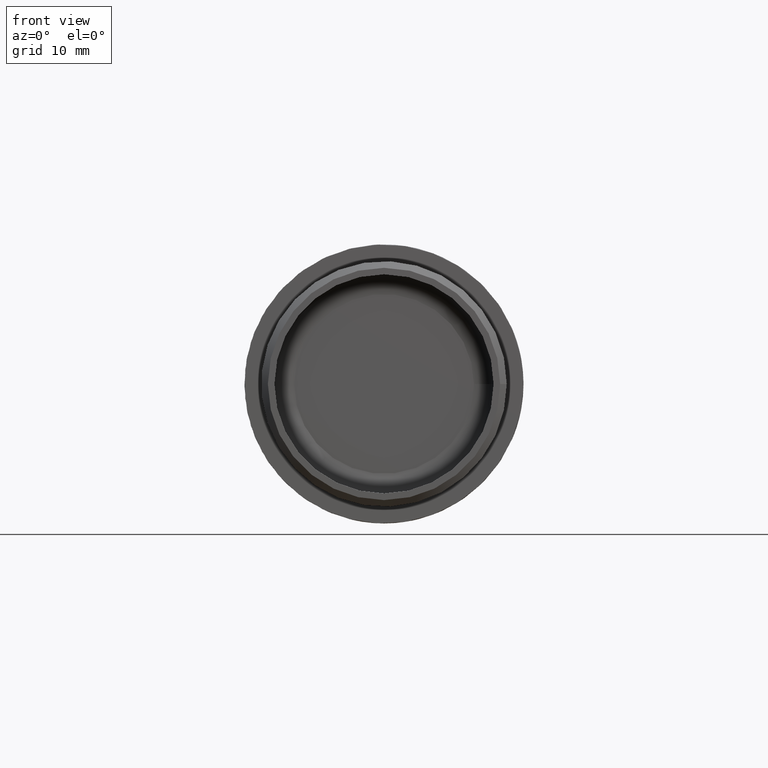
[diagram: clean part render]
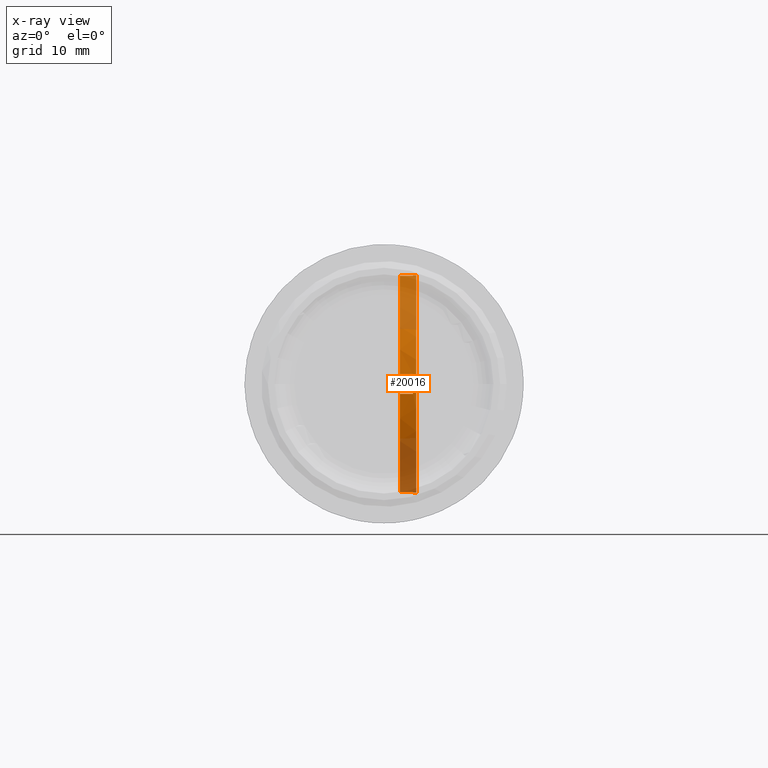
[diagram: x-ray — body ghosted, one internal face saturated and labeled with its STEP entity id]
A machine part, front view, then the same camera in x-ray: the body is ghosted and one INTERNAL B-rep face — a face not visible from any outside direction — is saturated and labeled: STEP entity #20016.
In plain terms, the highlighted cylindrical surface (bore or boss wall) has radius 16.5 mm, axis along (1, -0, -0).
Its self-contained STEP definition (entity closure, byte-faithful):
#41 = ORIENTED_EDGE ( 'NONE', *, *, #10855, .F. ) ;
#232 = CARTESIAN_POINT ( 'NONE',  ( 2.399999999999997700, 26.79999999999999700, 9.565114661027472100E-015 ) ) ;
#252 = CIRCLE ( 'NONE', #1504, 16.50000000000000400 ) ;
#281 = DIRECTION ( 'NONE',  ( -1.000000000000000000, -2.465190328815661900E-032, -2.380153423516082800E-016 ) ) ;
#315 = LINE ( 'NONE', #555, #7012 ) ;
#327 = DIRECTION ( 'NONE',  ( 2.628368902995161500E-016, 0.0000000000000000000, -1.000000000000000000 ) ) ;
#370 = DIRECTION ( 'NONE',  ( 2.365532012695645700E-016, 0.0000000000000000000, -1.000000000000000000 ) ) ;
#555 = CARTESIAN_POINT ( 'NONE',  ( 1.400000000000001900, 28.29999999999999700, -16.43167672515497600 ) ) ;
#559 = CARTESIAN_POINT ( 'NONE',  ( 2.399999999999997700, 43.23167672515499000, 1.500000000000001100 ) ) ;
#581 = AXIS2_PLACEMENT_3D ( 'NONE', #8788, #15151, #5685 ) ;
#668 = VERTEX_POINT ( 'NONE', #8706 ) ;
#849 = VECTOR ( 'NONE', #18010, 1000.000000000000000 ) ;
#1012 = EDGE_LOOP ( 'NONE', ( #2049, #8327 ) ) ;
#1053 = ORIENTED_EDGE ( 'NONE', *, *, #3176, .F. ) ;
#1129 = DIRECTION ( 'NONE',  ( 1.000000000000000000, -3.726309866894354800E-032, 2.448801383671572500E-016 ) ) ;
#1384 = VERTEX_POINT ( 'NONE', #559 ) ;
#1504 = AXIS2_PLACEMENT_3D ( 'NONE', #5751, #8920, #13813 ) ;
#1526 = VERTEX_POINT ( 'NONE', #8850 ) ;
#1538 = EDGE_CURVE ( 'NONE', #17019, #17173, #19507, .T. ) ;
#1647 = DIRECTION ( 'NONE',  ( 1.000000000000000000, -3.726309866894354800E-032, 2.448801383671572500E-016 ) ) ;
#1821 = EDGE_CURVE ( 'NONE', #20573, #16250, #5860, .T. ) ;
#1868 = CARTESIAN_POINT ( 'NONE',  ( 4.399999999999997700, 10.36832327484501100, -1.499999999999998400 ) ) ;
#1918 = DIRECTION ( 'NONE',  ( -1.000000000000000000, -2.465190328815661900E-032, -2.380153423516082800E-016 ) ) ;
#2012 = CIRCLE ( 'NONE', #16881, 16.50000000000000400 ) ;
#2049 = ORIENTED_EDGE ( 'NONE', *, *, #9328, .T. ) ;
#2067 = DIRECTION ( 'NONE',  ( 1.000000000000000000, -3.726309866894354800E-032, 2.448801383671572500E-016 ) ) ;
#2414 = DIRECTION ( 'NONE',  ( 1.000000000000000000, -3.726309866894354800E-032, 2.448801383671572500E-016 ) ) ;
#2564 = CARTESIAN_POINT ( 'NONE',  ( 4.399999999999997700, 26.79999999999999700, 1.005487493776178700E-014 ) ) ;
#3070 = CARTESIAN_POINT ( 'NONE',  ( 4.399999999999997700, 26.79999999999999700, 1.005487493776178700E-014 ) ) ;
#3176 = EDGE_CURVE ( 'NONE', #668, #10150, #8525, .T. ) ;
#3316 = CIRCLE ( 'NONE', #6639, 16.50000000000000400 ) ;
#3320 = DIRECTION ( 'NONE',  ( 2.628368902995161500E-016, 0.0000000000000000000, -1.000000000000000000 ) ) ;
#3460 = AXIS2_PLACEMENT_3D ( 'NONE', #2564, #4099, #15157 ) ;
#3466 = CARTESIAN_POINT ( 'NONE',  ( 2.399999999999997700, 26.79999999999999700, 9.565114661027472100E-015 ) ) ;
#3582 = ORIENTED_EDGE ( 'NONE', *, *, #16219, .F. ) ;
#3686 = CARTESIAN_POINT ( 'NONE',  ( 4.899999999999997700, 26.79999999999999700, 1.017731500694536500E-014 ) ) ;
#3702 = AXIS2_PLACEMENT_3D ( 'NONE', #7870, #15605, #15815 ) ;
#4087 = CARTESIAN_POINT ( 'NONE',  ( 4.399999999999993200, 28.29999999999999700, 16.43167672515499700 ) ) ;
#4099 = DIRECTION ( 'NONE',  ( 1.000000000000000000, -3.726309866894354800E-032, 2.448801383671572500E-016 ) ) ;
#4316 = VECTOR ( 'NONE', #1129, 1000.000000000000000 ) ;
#4356 = VECTOR ( 'NONE', #4476, 1000.000000000000000 ) ;
#4394 = AXIS2_PLACEMENT_3D ( 'NONE', #16113, #11383, #3320 ) ;
#4476 = DIRECTION ( 'NONE',  ( 1.000000000000000000, -3.726309866894354800E-032, 2.448801383671572500E-016 ) ) ;
#4478 = AXIS2_PLACEMENT_3D ( 'NONE', #11082, #1647, #327 ) ;
#4750 = ORIENTED_EDGE ( 'NONE', *, *, #17873, .F. ) ;
#4977 = DIRECTION ( 'NONE',  ( 1.000000000000000000, -3.726309866894354800E-032, 2.448801383671572500E-016 ) ) ;
#4981 = DIRECTION ( 'NONE',  ( -1.000000000000000000, -2.465190328815661900E-032, -2.380153423516082800E-016 ) ) ;
#5153 = LINE ( 'NONE', #9223, #7874 ) ;
#5449 = EDGE_CURVE ( 'NONE', #19242, #17241, #14676, .T. ) ;
#5685 = DIRECTION ( 'NONE',  ( 2.628368902995161500E-016, 0.0000000000000000000, -1.000000000000000000 ) ) ;
#5751 = CARTESIAN_POINT ( 'NONE',  ( 4.899999999999997700, 26.79999999999999700, 1.017731500694536500E-014 ) ) ;
#5805 = CARTESIAN_POINT ( 'NONE',  ( 1.399999999999997700, 43.23167672515499000, 1.500000000000000900 ) ) ;
#5860 = CIRCLE ( 'NONE', #4478, 16.50000000000000400 ) ;
#5956 = CIRCLE ( 'NONE', #581, 16.50000000000000400 ) ;
#5970 = CARTESIAN_POINT ( 'NONE',  ( 1.400000000000001900, 25.29999999999999700, -16.43167672515497600 ) ) ;
#5978 = EDGE_CURVE ( 'NONE', #19242, #1384, #3316, .T. ) ;
#6023 = EDGE_LOOP ( 'NONE', ( #41, #10349, #11167, #12351, #16293, #16961, #16643, #4750, #3582, #14860, #13900, #16814, #1053, #11126, #9087, #6140 ) ) ;
#6122 = CARTESIAN_POINT ( 'NONE',  ( 4.399999999999997700, 43.23167672515499000, 1.500000000000001600 ) ) ;
#6140 = ORIENTED_EDGE ( 'NONE', *, *, #1821, .F. ) ;
#6318 = CARTESIAN_POINT ( 'NONE',  ( 4.399999999999997700, 43.23167672515499000, -1.499999999999998400 ) ) ;
#6369 = LINE ( 'NONE', #5805, #11035 ) ;
#6578 = VERTEX_POINT ( 'NONE', #14030 ) ;
#6639 = AXIS2_PLACEMENT_3D ( 'NONE', #232, #4981, #370 ) ;
#6695 = EDGE_CURVE ( 'NONE', #17173, #1526, #315, .T. ) ;
#7012 = VECTOR ( 'NONE', #19338, 1000.000000000000000 ) ;
#7372 = EDGE_CURVE ( 'NONE', #668, #17099, #13648, .T. ) ;
#7588 = DIRECTION ( 'NONE',  ( 1.000000000000000000, -3.726309866894354800E-032, 2.448801383671572500E-016 ) ) ;
#7702 = DIRECTION ( 'NONE',  ( 1.000000000000000000, -3.726309866894354800E-032, 2.448801383671572500E-016 ) ) ;
#7707 = CARTESIAN_POINT ( 'NONE',  ( 2.399999999999993700, 25.29999999999999700, 16.43167672515499700 ) ) ;
#7870 = CARTESIAN_POINT ( 'NONE',  ( 2.399999999999997700, 26.79999999999999700, 9.565114661027472100E-015 ) ) ;
#7874 = VECTOR ( 'NONE', #7702, 1000.000000000000000 ) ;
#7977 = CARTESIAN_POINT ( 'NONE',  ( 2.399999999999993700, 28.29999999999999700, 16.43167672515499700 ) ) ;
#8007 = VECTOR ( 'NONE', #18661, 1000.000000000000000 ) ;
#8264 = EDGE_CURVE ( 'NONE', #16180, #6578, #2012, .T. ) ;
#8327 = ORIENTED_EDGE ( 'NONE', *, *, #8264, .T. ) ;
#8328 = CIRCLE ( 'NONE', #18742, 16.50000000000000400 ) ;
#8525 = LINE ( 'NONE', #5970, #4316 ) ;
#8562 = LINE ( 'NONE', #18708, #4356 ) ;
#8706 = CARTESIAN_POINT ( 'NONE',  ( 2.400000000000001700, 25.29999999999999700, -16.43167672515497600 ) ) ;
#8788 = CARTESIAN_POINT ( 'NONE',  ( 4.399999999999997700, 26.79999999999999700, 1.005487493776178700E-014 ) ) ;
#8850 = CARTESIAN_POINT ( 'NONE',  ( 4.400000000000002100, 28.29999999999999700, -16.43167672515497600 ) ) ;
#8920 = DIRECTION ( 'NONE',  ( 1.000000000000000000, -3.726309866894354800E-032, 2.448801383671572500E-016 ) ) ;
#9013 = VECTOR ( 'NONE', #2067, 1000.000000000000000 ) ;
#9087 = ORIENTED_EDGE ( 'NONE', *, *, #19951, .T. ) ;
#9223 = CARTESIAN_POINT ( 'NONE',  ( 1.399999999999997700, 10.36832327484501100, 1.500000000000000900 ) ) ;
#9328 = EDGE_CURVE ( 'NONE', #6578, #16180, #252, .T. ) ;
#9363 = VERTEX_POINT ( 'NONE', #7707 ) ;
#9898 = EDGE_CURVE ( 'NONE', #10150, #1526, #5956, .T. ) ;
#9942 = CARTESIAN_POINT ( 'NONE',  ( 1.399999999999997700, 43.23167672515499000, -1.499999999999999100 ) ) ;
#10150 = VERTEX_POINT ( 'NONE', #12627 ) ;
#10349 = ORIENTED_EDGE ( 'NONE', *, *, #18282, .T. ) ;
#10855 = EDGE_CURVE ( 'NONE', #19431, #20573, #5153, .T. ) ;
#11035 = VECTOR ( 'NONE', #2414, 1000.000000000000000 ) ;
#11082 = CARTESIAN_POINT ( 'NONE',  ( 4.399999999999997700, 26.79999999999999700, 1.005487493776178700E-014 ) ) ;
#11126 = ORIENTED_EDGE ( 'NONE', *, *, #7372, .T. ) ;
#11167 = ORIENTED_EDGE ( 'NONE', *, *, #18647, .T. ) ;
#11334 = CARTESIAN_POINT ( 'NONE',  ( 2.399999999999998100, 43.23167672515499000, -1.499999999999998900 ) ) ;
#11383 = DIRECTION ( 'NONE',  ( 1.000000000000000000, -3.726309866894354800E-032, 2.448801383671572500E-016 ) ) ;
#11575 = CARTESIAN_POINT ( 'NONE',  ( 4.399999999999997700, 10.36832327484501100, 1.500000000000001600 ) ) ;
#11752 = CARTESIAN_POINT ( 'NONE',  ( 2.400000000000001700, 28.29999999999999700, -16.43167672515497600 ) ) ;
#11842 = CARTESIAN_POINT ( 'NONE',  ( 2.399999999999997200, 10.36832327484501100, 1.500000000000001100 ) ) ;
#12351 = ORIENTED_EDGE ( 'NONE', *, *, #19773, .F. ) ;
#12627 = CARTESIAN_POINT ( 'NONE',  ( 4.400000000000002100, 25.29999999999999700, -16.43167672515497600 ) ) ;
#12695 = FACE_OUTER_BOUND ( 'NONE', #1012, .T. ) ;
#12740 = DIRECTION ( 'NONE',  ( 2.365532012695645700E-016, 0.0000000000000000000, -1.000000000000000000 ) ) ;
#12781 = DIRECTION ( 'NONE',  ( 2.365532012695645700E-016, 8.410780489584517700E-016, -1.000000000000000000 ) ) ;
#12826 = CARTESIAN_POINT ( 'NONE',  ( 4.900000000000000400, 26.79999999999999700, 16.50000000000001400 ) ) ;
#12919 = EDGE_CURVE ( 'NONE', #1384, #15023, #6369, .T. ) ;
#12972 = LINE ( 'NONE', #17735, #9013 ) ;
#13051 = CARTESIAN_POINT ( 'NONE',  ( 4.399999999999993200, 25.29999999999999700, 16.43167672515499700 ) ) ;
#13496 = CIRCLE ( 'NONE', #18582, 16.50000000000000400 ) ;
#13544 = VERTEX_POINT ( 'NONE', #6318 ) ;
#13648 = CIRCLE ( 'NONE', #15267, 16.50000000000000400 ) ;
#13813 = DIRECTION ( 'NONE',  ( 2.628368902995161500E-016, 0.0000000000000000000, -1.000000000000000000 ) ) ;
#13900 = ORIENTED_EDGE ( 'NONE', *, *, #6695, .T. ) ;
#14030 = CARTESIAN_POINT ( 'NONE',  ( 4.900000000000002100, 26.80000000000000100, -16.49999999999999300 ) ) ;
#14052 = VERTEX_POINT ( 'NONE', #13051 ) ;
#14200 = FACE_OUTER_BOUND ( 'NONE', #6023, .T. ) ;
#14676 = LINE ( 'NONE', #20248, #8007 ) ;
#14740 = DIRECTION ( 'NONE',  ( 2.628368902995161500E-016, 0.0000000000000000000, -1.000000000000000000 ) ) ;
#14860 = ORIENTED_EDGE ( 'NONE', *, *, #1538, .T. ) ;
#15023 = VERTEX_POINT ( 'NONE', #6122 ) ;
#15151 = DIRECTION ( 'NONE',  ( 1.000000000000000000, -3.726309866894354800E-032, 2.448801383671572500E-016 ) ) ;
#15157 = DIRECTION ( 'NONE',  ( 2.628368902995161500E-016, 0.0000000000000000000, -1.000000000000000000 ) ) ;
#15267 = AXIS2_PLACEMENT_3D ( 'NONE', #17564, #1918, #12740 ) ;
#15605 = DIRECTION ( 'NONE',  ( -1.000000000000000000, -2.465190328815661900E-032, -2.380153423516082800E-016 ) ) ;
#15815 = DIRECTION ( 'NONE',  ( 2.365532012695645700E-016, 8.410780489584517700E-016, -1.000000000000000000 ) ) ;
#16113 = CARTESIAN_POINT ( 'NONE',  ( 4.399999999999997700, 26.79999999999999700, 1.005487493776178700E-014 ) ) ;
#16180 = VERTEX_POINT ( 'NONE', #12826 ) ;
#16219 = EDGE_CURVE ( 'NONE', #17019, #13544, #19718, .T. ) ;
#16250 = VERTEX_POINT ( 'NONE', #1868 ) ;
#16293 = ORIENTED_EDGE ( 'NONE', *, *, #5449, .F. ) ;
#16448 = CYLINDRICAL_SURFACE ( 'NONE', #4394, 16.50000000000000400 ) ;
#16612 = CARTESIAN_POINT ( 'NONE',  ( 2.399999999999997700, 10.36832327484501100, -1.499999999999998900 ) ) ;
#16643 = ORIENTED_EDGE ( 'NONE', *, *, #12919, .T. ) ;
#16814 = ORIENTED_EDGE ( 'NONE', *, *, #9898, .F. ) ;
#16881 = AXIS2_PLACEMENT_3D ( 'NONE', #3686, #4977, #14740 ) ;
#16961 = ORIENTED_EDGE ( 'NONE', *, *, #5978, .T. ) ;
#17019 = VERTEX_POINT ( 'NONE', #11334 ) ;
#17099 = VERTEX_POINT ( 'NONE', #16612 ) ;
#17173 = VERTEX_POINT ( 'NONE', #11752 ) ;
#17200 = CIRCLE ( 'NONE', #3460, 16.50000000000000400 ) ;
#17241 = VERTEX_POINT ( 'NONE', #4087 ) ;
#17564 = CARTESIAN_POINT ( 'NONE',  ( 2.399999999999997700, 26.79999999999999700, 9.565114661027472100E-015 ) ) ;
#17735 = CARTESIAN_POINT ( 'NONE',  ( 1.399999999999997700, 10.36832327484501100, -1.499999999999999100 ) ) ;
#17873 = EDGE_CURVE ( 'NONE', #13544, #15023, #13496, .T. ) ;
#18010 = DIRECTION ( 'NONE',  ( 1.000000000000000000, -3.726309866894354800E-032, 2.448801383671572500E-016 ) ) ;
#18282 = EDGE_CURVE ( 'NONE', #19431, #9363, #8328, .T. ) ;
#18582 = AXIS2_PLACEMENT_3D ( 'NONE', #3070, #7588, #18880 ) ;
#18647 = EDGE_CURVE ( 'NONE', #9363, #14052, #8562, .T. ) ;
#18661 = DIRECTION ( 'NONE',  ( 1.000000000000000000, -3.726309866894354800E-032, 2.448801383671572500E-016 ) ) ;
#18708 = CARTESIAN_POINT ( 'NONE',  ( 1.399999999999993200, 25.29999999999999700, 16.43167672515499700 ) ) ;
#18742 = AXIS2_PLACEMENT_3D ( 'NONE', #3466, #281, #12781 ) ;
#18880 = DIRECTION ( 'NONE',  ( 2.628368902995161500E-016, 0.0000000000000000000, -1.000000000000000000 ) ) ;
#19242 = VERTEX_POINT ( 'NONE', #7977 ) ;
#19338 = DIRECTION ( 'NONE',  ( 1.000000000000000000, -3.726309866894354800E-032, 2.448801383671572500E-016 ) ) ;
#19431 = VERTEX_POINT ( 'NONE', #11842 ) ;
#19507 = CIRCLE ( 'NONE', #3702, 16.50000000000000400 ) ;
#19718 = LINE ( 'NONE', #9942, #849 ) ;
#19773 = EDGE_CURVE ( 'NONE', #17241, #14052, #17200, .T. ) ;
#19951 = EDGE_CURVE ( 'NONE', #17099, #16250, #12972, .T. ) ;
#20016 = ADVANCED_FACE ( 'NONE', ( #14200, #12695 ), #16448, .F. ) ;
#20248 = CARTESIAN_POINT ( 'NONE',  ( 1.399999999999993200, 28.29999999999999700, 16.43167672515499700 ) ) ;
#20573 = VERTEX_POINT ( 'NONE', #11575 ) ;